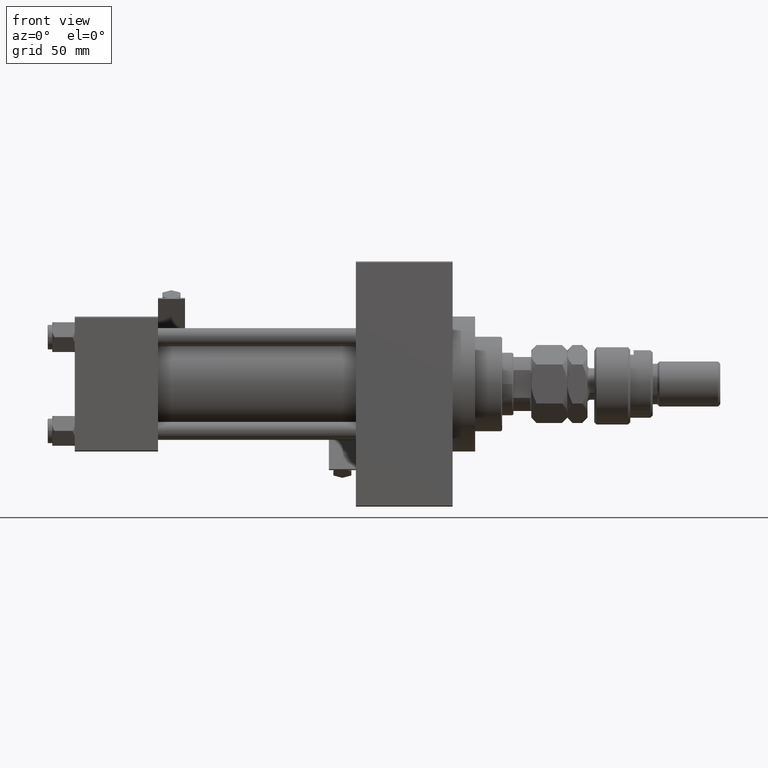
[diagram: clean part render]
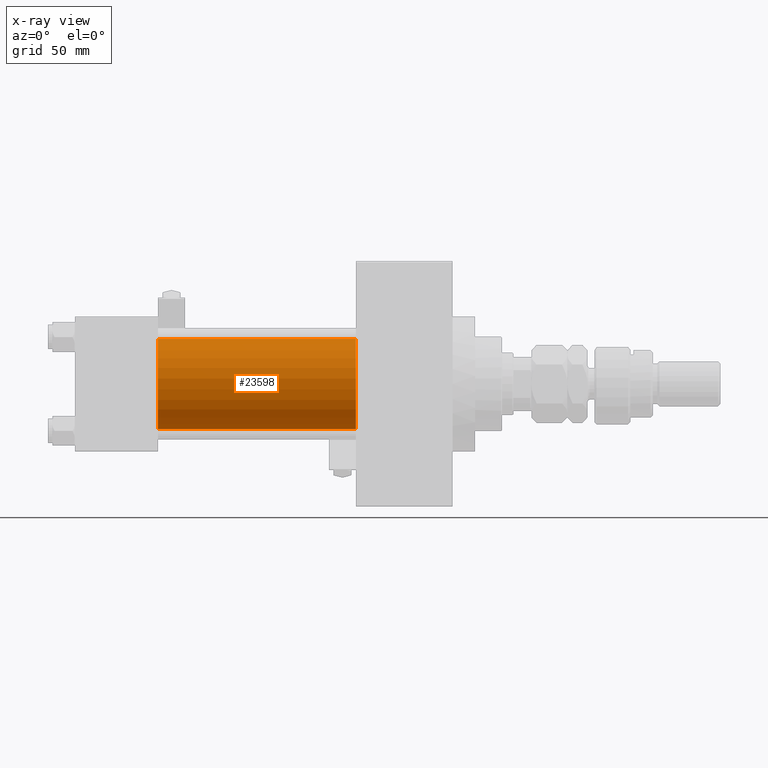
[diagram: x-ray — body ghosted, one internal face saturated and labeled with its STEP entity id]
A machine part, front view, then the same camera in x-ray: the body is ghosted and one INTERNAL B-rep face — a face not visible from any outside direction — is saturated and labeled: STEP entity #23598.
In plain terms, the highlighted cylindrical surface (partial cylindrical patch) has radius 20 mm, axis along (-1, -0, -0).
Its self-contained STEP definition (entity closure, byte-faithful):
#873 = CYLINDRICAL_SURFACE ( 'NONE', #39432, 20.00000000000000000 ) ;
#1389 = ORIENTED_EDGE ( 'NONE', *, *, #25359, .T. ) ;
#2997 = VECTOR ( 'NONE', #4803, 1000.000000000000000 ) ;
#3174 = CARTESIAN_POINT ( 'NONE',  ( 125.0000000000000000, -2.602085213965210642E-15, 20.00000000000000000 ) ) ;
#4527 = DIRECTION ( 'NONE',  ( 0.000000000000000000, 0.000000000000000000, -1.000000000000000000 ) ) ;
#4803 = DIRECTION ( 'NONE',  ( -1.000000000000000000, -0.000000000000000000, -0.000000000000000000 ) ) ;
#5810 = CIRCLE ( 'NONE', #37772, 20.00000000000000000 ) ;
#6007 = VERTEX_POINT ( 'NONE', #38407 ) ;
#6218 = CARTESIAN_POINT ( 'NONE',  ( 125.0000000000000000, -2.602085213965210642E-15, 0.000000000000000000 ) ) ;
#6631 = VECTOR ( 'NONE', #31571, 1000.000000000000000 ) ;
#8588 = DIRECTION ( 'NONE',  ( 1.000000000000000000, 0.000000000000000000, 0.000000000000000000 ) ) ;
#14629 = ORIENTED_EDGE ( 'NONE', *, *, #49241, .F. ) ;
#14892 = DIRECTION ( 'NONE',  ( 0.000000000000000000, 0.000000000000000000, -1.000000000000000000 ) ) ;
#17645 = DIRECTION ( 'NONE',  ( -1.000000000000000000, -0.000000000000000000, -0.000000000000000000 ) ) ;
#18704 = AXIS2_PLACEMENT_3D ( 'NONE', #49954, #8588, #4527 ) ;
#20543 = EDGE_CURVE ( 'NONE', #52981, #6007, #25647, .T. ) ;
#23598 = ADVANCED_FACE ( 'NONE', ( #50617 ), #873, .F. ) ;
#24629 = EDGE_CURVE ( 'NONE', #44468, #48179, #26454, .T. ) ;
#25244 = DIRECTION ( 'NONE',  ( 0.000000000000000000, 0.000000000000000000, 1.000000000000000000 ) ) ;
#25359 = EDGE_CURVE ( 'NONE', #52981, #44468, #5810, .T. ) ;
#25647 = LINE ( 'NONE', #38086, #2997 ) ;
#26454 = LINE ( 'NONE', #47794, #6631 ) ;
#28224 = CIRCLE ( 'NONE', #18704, 20.00000000000000000 ) ;
#29261 = ORIENTED_EDGE ( 'NONE', *, *, #20543, .F. ) ;
#31571 = DIRECTION ( 'NONE',  ( -1.000000000000000000, -0.000000000000000000, -0.000000000000000000 ) ) ;
#33608 = EDGE_LOOP ( 'NONE', ( #1389, #36801, #14629, #29261 ) ) ;
#36801 = ORIENTED_EDGE ( 'NONE', *, *, #24629, .T. ) ;
#37772 = AXIS2_PLACEMENT_3D ( 'NONE', #6218, #38962, #14892 ) ;
#38086 = CARTESIAN_POINT ( 'NONE',  ( 125.0000000000000000, -2.602085213965210642E-15, 20.00000000000000000 ) ) ;
#38407 = CARTESIAN_POINT ( 'NONE',  ( 37.00000000000000000, -2.602085213965210642E-15, 20.00000000000000000 ) ) ;
#38962 = DIRECTION ( 'NONE',  ( 1.000000000000000000, 0.000000000000000000, 0.000000000000000000 ) ) ;
#39432 = AXIS2_PLACEMENT_3D ( 'NONE', #46049, #17645, #25244 ) ;
#42610 = CARTESIAN_POINT ( 'NONE',  ( 125.0000000000000000, -1.527916156705042519E-16, -20.00000000000000000 ) ) ;
#44468 = VERTEX_POINT ( 'NONE', #42610 ) ;
#46049 = CARTESIAN_POINT ( 'NONE',  ( 125.0000000000000000, -2.602085213965210642E-15, 0.000000000000000000 ) ) ;
#47794 = CARTESIAN_POINT ( 'NONE',  ( 125.0000000000000000, -1.527916156705042519E-16, -20.00000000000000000 ) ) ;
#48179 = VERTEX_POINT ( 'NONE', #49164 ) ;
#49164 = CARTESIAN_POINT ( 'NONE',  ( 37.00000000000000000, -1.527916156705042519E-16, -20.00000000000000000 ) ) ;
#49241 = EDGE_CURVE ( 'NONE', #6007, #48179, #28224, .T. ) ;
#49954 = CARTESIAN_POINT ( 'NONE',  ( 37.00000000000000000, -2.602085213965210642E-15, 0.000000000000000000 ) ) ;
#50617 = FACE_OUTER_BOUND ( 'NONE', #33608, .T. ) ;
#52981 = VERTEX_POINT ( 'NONE', #3174 ) ;